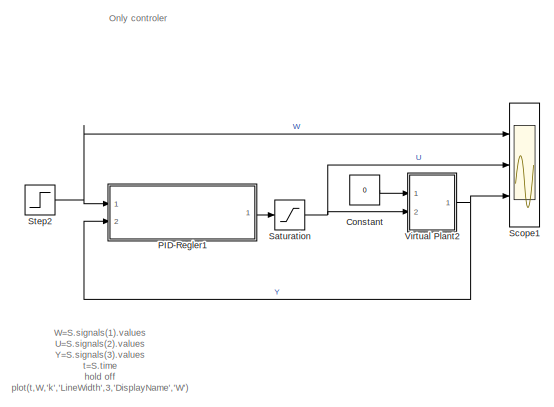
[diagram: root canvas - part 1/2, left side, full height]
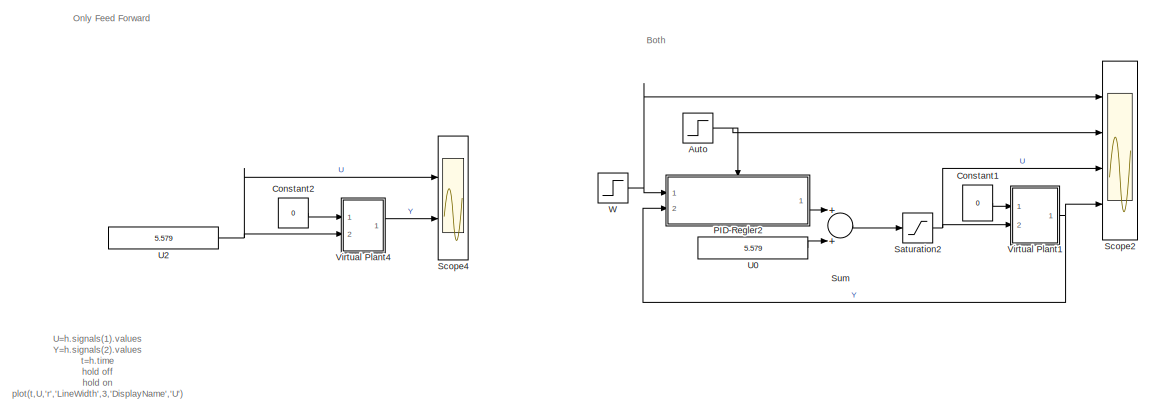
[diagram: root canvas - part 2/2, right side, full height]
MODEL slx_b2a3383e577d
KIND model
CONFIG AbsTol = auto
CONFIG FixedStep = 0.1
CONFIG MaxStep = auto
CONFIG MinStep = auto
CONFIG RelTol = 1e-3
CONFIG SampleTimeConstraint = Unconstrained
CONFIG Solver = ode1
CONFIG SolverMode = Auto
CONFIG SolverName = ode1
CONFIG StartTime = 0.0
CONFIG StopTime = 180
BLOCK [Step] Auto
  SampleTime = 0
  Time = 30
BLOCK [Constant] Constant
  Value = 0
BLOCK [Constant] Constant1
  Value = 0
BLOCK [Constant] Constant2
  Value = 0
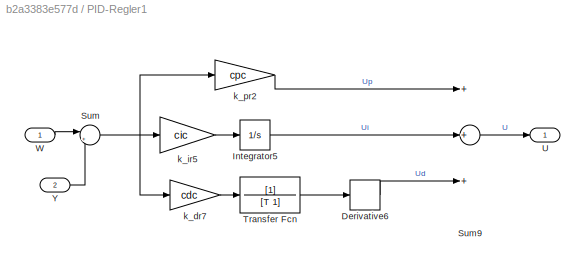
BLOCK [SubSystem] PID-Regler1
  Ports = [2, 1]
  RequestExecContextInheritance = off
  Variant = off
BLOCK [Derivative] PID-Regler1/Derivative6
BLOCK [Integrator] PID-Regler1/Integrator5
  Ports = [1, 1]
BLOCK [Sum] PID-Regler1/Sum
  IconShape = round
  InputSameDT = off
  Inputs = |+-
  OutDataTypeStr = Inherit: Inherit via internal rule
  Ports = [2, 1]
  SaturateOnIntegerOverflow = off
BLOCK [Sum] PID-Regler1/Sum9
  InputSameDT = off
  Inputs = +++
  OutDataTypeStr = Inherit: Inherit via internal rule
  Ports = [3, 1]
  SaturateOnIntegerOverflow = off
BLOCK [TransferFcn] PID-Regler1/Transfer Fcn
  Denominator = [T 1]
BLOCK [Outport] PID-Regler1/U
  IconDisplay = Port number
BLOCK [Inport] PID-Regler1/W
  IconDisplay = Port number
BLOCK [Inport] PID-Regler1/Y
  IconDisplay = Port number
  Port = 2
BLOCK [Gain] PID-Regler1/k_dr7
  Gain = cdc
  OutDataTypeStr = Inherit: Inherit via internal rule
  ParamDataTypeStr = Inherit: Inherit via internal rule
  SaturateOnIntegerOverflow = off
BLOCK [Gain] PID-Regler1/k_ir5
  Gain = cic
  OutDataTypeStr = Inherit: Inherit via internal rule
  ParamDataTypeStr = Inherit: Inherit via internal rule
  SaturateOnIntegerOverflow = off
BLOCK [Gain] PID-Regler1/k_pr2
  Gain = cpc
  OutDataTypeStr = Inherit: Inherit via internal rule
  ParamDataTypeStr = Inherit: Inherit via internal rule
  SaturateOnIntegerOverflow = off
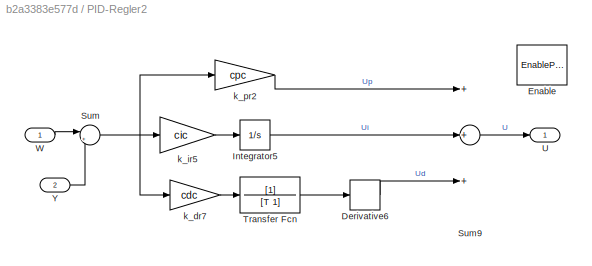
BLOCK [SubSystem] PID-Regler2
  Ports = [2, 1, 1]
  RequestExecContextInheritance = off
  Variant = off
BLOCK [Derivative] PID-Regler2/Derivative6
BLOCK [EnablePort] PID-Regler2/Enable
  Ports = []
BLOCK [Integrator] PID-Regler2/Integrator5
  Ports = [1, 1]
BLOCK [Sum] PID-Regler2/Sum
  IconShape = round
  InputSameDT = off
  Inputs = |+-
  OutDataTypeStr = Inherit: Inherit via internal rule
  Ports = [2, 1]
  SaturateOnIntegerOverflow = off
BLOCK [Sum] PID-Regler2/Sum9
  InputSameDT = off
  Inputs = +++
  OutDataTypeStr = Inherit: Inherit via internal rule
  Ports = [3, 1]
  SaturateOnIntegerOverflow = off
BLOCK [TransferFcn] PID-Regler2/Transfer Fcn
  Denominator = [T 1]
BLOCK [Outport] PID-Regler2/U
  IconDisplay = Port number
BLOCK [Inport] PID-Regler2/W
  IconDisplay = Port number
BLOCK [Inport] PID-Regler2/Y
  IconDisplay = Port number
  Port = 2
BLOCK [Gain] PID-Regler2/k_dr7
  Gain = cdc
  OutDataTypeStr = Inherit: Inherit via internal rule
  ParamDataTypeStr = Inherit: Inherit via internal rule
  SaturateOnIntegerOverflow = off
BLOCK [Gain] PID-Regler2/k_ir5
  Gain = cic
  OutDataTypeStr = Inherit: Inherit via internal rule
  ParamDataTypeStr = Inherit: Inherit via internal rule
  SaturateOnIntegerOverflow = off
BLOCK [Gain] PID-Regler2/k_pr2
  Gain = cpc
  OutDataTypeStr = Inherit: Inherit via internal rule
  ParamDataTypeStr = Inherit: Inherit via internal rule
  SaturateOnIntegerOverflow = off
BLOCK [Saturate] Saturation
  AttributesFormatString = Lower Limit=%<LowerLimit>\nUpper Limit=%<UpperLimit>
  InputPortMap = u0
  LowerLimit = 4.5
  Ports = [1, 1]
  UpperLimit = 7.5
BLOCK [Saturate] Saturation2
  AttributesFormatString = Lower Limit=%<LowerLimit>\nUpper Limit=%<UpperLimit>
  InputPortMap = u0
  LowerLimit = 4.5
  Ports = [1, 1]
  UpperLimit = 7.5
BLOCK [Scope] Scope1
  NumInputPorts = 3
  Ports = [3]
  ScopeSpecificationString = Simulink.scopes.TimeScopeBlockCfg('CurrentConfiguration', extmgr.ConfigurationSet(extmgr.Configuration('Core','General UI',true),extmgr.Configuration('Core','Source UI',true),extmgr.Configuration('Sources','WiredSimulink',true,'DataLoggingVariableName','S','DataLogging',true,'DataLoggingSaveFormat','StructureWithTime'),extmgr.Configuration('Visuals','Time Domain',true,'SerializedDisplays',{struct(...<+1798ch>
BLOCK [Scope] Scope2
  NumInputPorts = 4
  Ports = [4]
  ScopeSpecificationString = Simulink.scopes.TimeScopeBlockCfg('CurrentConfiguration', extmgr.ConfigurationSet(extmgr.Configuration('Core','General UI',true),extmgr.Configuration('Core','Source UI',true),extmgr.Configuration('Sources','WiredSimulink',true,'DataLoggingVariableName','ScopeData1','DataLogging',true,'DataLoggingSaveFormat','StructureWithTime'),extmgr.Configuration('Visuals','Time Domain',true,'SerializedDisplays'...<+1828ch>
BLOCK [Scope] Scope4
  NumInputPorts = 2
  Ports = [2]
  ScopeSpecificationString = Simulink.scopes.TimeScopeBlockCfg('CurrentConfiguration', extmgr.ConfigurationSet(extmgr.Configuration('Core','General UI',true),extmgr.Configuration('Core','Source UI',true),extmgr.Configuration('Sources','WiredSimulink',true,'DataLoggingVariableName','h','DataLogging',true,'DataLoggingSaveFormat','StructureWithTime'),extmgr.Configuration('Visuals','Time Domain',true,'SerializedDisplays',{struct(...<+1815ch>
BLOCK [Step] Step2
  After = 6
  AttributesFormatString = Start Value=%<Before>\nStep Time=%<Time>\nFinal Vlaue=%<After>
  Before = 4
  SampleTime = 0
  Time = 100
BLOCK [Sum] Sum
  InputSameDT = off
  OutDataTypeStr = Inherit: Inherit via internal rule
  Ports = [2, 1]
  SaturateOnIntegerOverflow = off
BLOCK [Constant] U0
  OutDataTypeStr = double
  Value = 5.579
BLOCK [Constant] U2
  OutDataTypeStr = double
  Value = 5.579
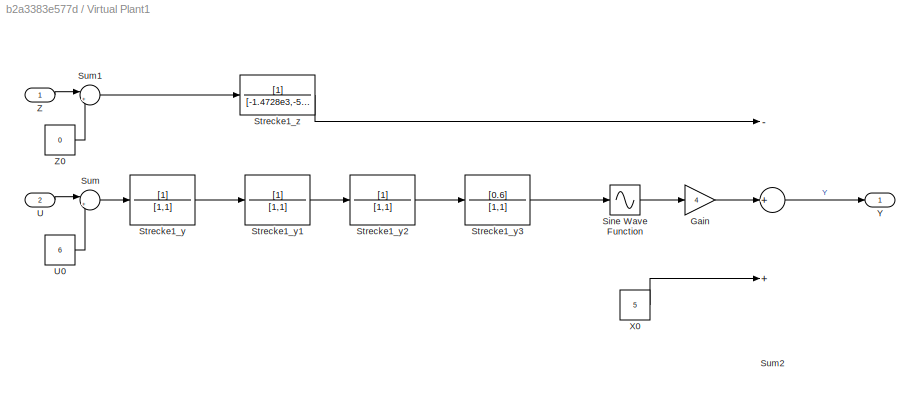
BLOCK [SubSystem] Virtual Plant1
  Ports = [2, 1]
  RequestExecContextInheritance = off
  Variant = off
BLOCK [Gain] Virtual Plant1/Gain
  Gain = 4
  OutDataTypeStr = Inherit: Inherit via internal rule
  ParamDataTypeStr = Inherit: Inherit via internal rule
  SaturateOnIntegerOverflow = off
BLOCK [Sin] Virtual Plant1/Sine Wave Function
  Ports = [1, 1]
  SampleTime = 0
  TimeSource = Use external signal
BLOCK [TransferFcn] Virtual Plant1/Strecke1_y
  Denominator = [1,1]
BLOCK [TransferFcn] Virtual Plant1/Strecke1_y1
  Denominator = [1,1]
BLOCK [TransferFcn] Virtual Plant1/Strecke1_y2
  Denominator = [1,1]
BLOCK [TransferFcn] Virtual Plant1/Strecke1_y3
  Denominator = [1,1]
  Numerator = [0.6]
BLOCK [TransferFcn] Virtual Plant1/Strecke1_z
  Denominator = [-1.4728e3,-534.157,-137.5577,-4.4778]
BLOCK [Sum] Virtual Plant1/Sum
  IconShape = round
  InputSameDT = off
  Inputs = |+-
  OutDataTypeStr = Inherit: Inherit via internal rule
  Ports = [2, 1]
  SaturateOnIntegerOverflow = off
BLOCK [Sum] Virtual Plant1/Sum1
  IconShape = round
  InputSameDT = off
  Inputs = |+-
  OutDataTypeStr = Inherit: Inherit via internal rule
  Ports = [2, 1]
  SaturateOnIntegerOverflow = off
BLOCK [Sum] Virtual Plant1/Sum2
  InputSameDT = off
  Inputs = -++
  OutDataTypeStr = Inherit: Inherit via internal rule
  Ports = [3, 1]
  SaturateOnIntegerOverflow = off
BLOCK [Inport] Virtual Plant1/U
  IconDisplay = Port number
  Port = 2
BLOCK [Constant] Virtual Plant1/U0
  Value = 6
BLOCK [Constant] Virtual Plant1/X0
  Value = 5
BLOCK [Outport] Virtual Plant1/Y
  IconDisplay = Port number
BLOCK [Inport] Virtual Plant1/Z
  IconDisplay = Port number
BLOCK [Constant] Virtual Plant1/Z0
  Value = 0
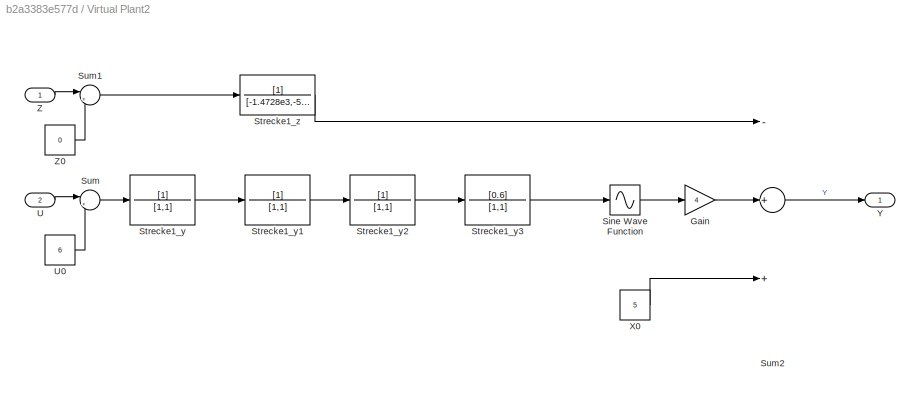
BLOCK [SubSystem] Virtual Plant2
  Ports = [2, 1]
  RequestExecContextInheritance = off
  Variant = off
BLOCK [Gain] Virtual Plant2/Gain
  Gain = 4
  OutDataTypeStr = Inherit: Inherit via internal rule
  ParamDataTypeStr = Inherit: Inherit via internal rule
  SaturateOnIntegerOverflow = off
BLOCK [Sin] Virtual Plant2/Sine Wave Function
  Ports = [1, 1]
  SampleTime = 0
  TimeSource = Use external signal
BLOCK [TransferFcn] Virtual Plant2/Strecke1_y
  Denominator = [1,1]
BLOCK [TransferFcn] Virtual Plant2/Strecke1_y1
  Denominator = [1,1]
BLOCK [TransferFcn] Virtual Plant2/Strecke1_y2
  Denominator = [1,1]
BLOCK [TransferFcn] Virtual Plant2/Strecke1_y3
  Denominator = [1,1]
  Numerator = [0.6]
BLOCK [TransferFcn] Virtual Plant2/Strecke1_z
  Denominator = [-1.4728e3,-534.157,-137.5577,-4.4778]
BLOCK [Sum] Virtual Plant2/Sum
  IconShape = round
  InputSameDT = off
  Inputs = |+-
  OutDataTypeStr = Inherit: Inherit via internal rule
  Ports = [2, 1]
  SaturateOnIntegerOverflow = off
BLOCK [Sum] Virtual Plant2/Sum1
  IconShape = round
  InputSameDT = off
  Inputs = |+-
  OutDataTypeStr = Inherit: Inherit via internal rule
  Ports = [2, 1]
  SaturateOnIntegerOverflow = off
BLOCK [Sum] Virtual Plant2/Sum2
  InputSameDT = off
  Inputs = -++
  OutDataTypeStr = Inherit: Inherit via internal rule
  Ports = [3, 1]
  SaturateOnIntegerOverflow = off
BLOCK [Inport] Virtual Plant2/U
  IconDisplay = Port number
  Port = 2
BLOCK [Constant] Virtual Plant2/U0
  Value = 6
BLOCK [Constant] Virtual Plant2/X0
  Value = 5
BLOCK [Outport] Virtual Plant2/Y
  IconDisplay = Port number
BLOCK [Inport] Virtual Plant2/Z
  IconDisplay = Port number
BLOCK [Constant] Virtual Plant2/Z0
  Value = 0
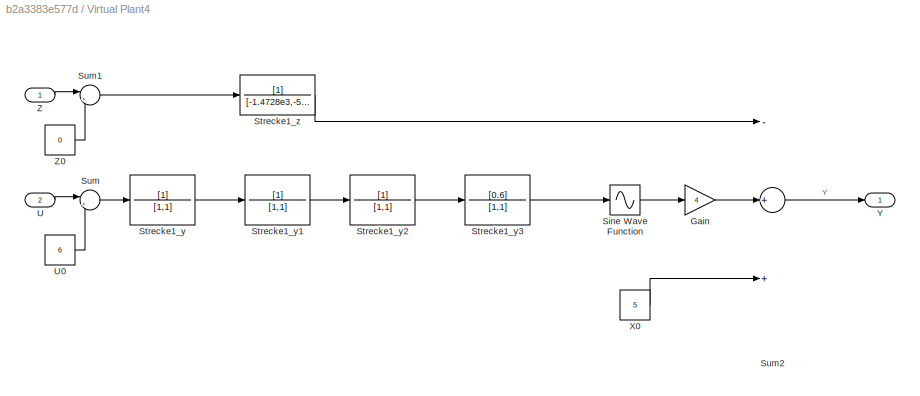
BLOCK [SubSystem] Virtual Plant4
  Ports = [2, 1]
  RequestExecContextInheritance = off
  Variant = off
BLOCK [Gain] Virtual Plant4/Gain
  Gain = 4
  OutDataTypeStr = Inherit: Inherit via internal rule
  ParamDataTypeStr = Inherit: Inherit via internal rule
  SaturateOnIntegerOverflow = off
BLOCK [Sin] Virtual Plant4/Sine Wave Function
  Ports = [1, 1]
  SampleTime = 0
  TimeSource = Use external signal
BLOCK [TransferFcn] Virtual Plant4/Strecke1_y
  Denominator = [1,1]
BLOCK [TransferFcn] Virtual Plant4/Strecke1_y1
  Denominator = [1,1]
BLOCK [TransferFcn] Virtual Plant4/Strecke1_y2
  Denominator = [1,1]
BLOCK [TransferFcn] Virtual Plant4/Strecke1_y3
  Denominator = [1,1]
  Numerator = [0.6]
BLOCK [TransferFcn] Virtual Plant4/Strecke1_z
  Denominator = [-1.4728e3,-534.157,-137.5577,-4.4778]
BLOCK [Sum] Virtual Plant4/Sum
  IconShape = round
  InputSameDT = off
  Inputs = |+-
  OutDataTypeStr = Inherit: Inherit via internal rule
  Ports = [2, 1]
  SaturateOnIntegerOverflow = off
BLOCK [Sum] Virtual Plant4/Sum1
  IconShape = round
  InputSameDT = off
  Inputs = |+-
  OutDataTypeStr = Inherit: Inherit via internal rule
  Ports = [2, 1]
  SaturateOnIntegerOverflow = off
BLOCK [Sum] Virtual Plant4/Sum2
  InputSameDT = off
  Inputs = -++
  OutDataTypeStr = Inherit: Inherit via internal rule
  Ports = [3, 1]
  SaturateOnIntegerOverflow = off
BLOCK [Inport] Virtual Plant4/U
  IconDisplay = Port number
  Port = 2
BLOCK [Constant] Virtual Plant4/U0
  Value = 6
BLOCK [Constant] Virtual Plant4/X0
  Value = 5
BLOCK [Outport] Virtual Plant4/Y
  IconDisplay = Port number
BLOCK [Inport] Virtual Plant4/Z
  IconDisplay = Port number
BLOCK [Constant] Virtual Plant4/Z0
  Value = 0
BLOCK [Step] W
  After = 6
  Before = 4
  SampleTime = 0
  Time = 100
ANNOTATION (root): Both
ANNOTATION (root): Only Feed Forward
ANNOTATION (root): Only controler
ANNOTATION (root): U=h.signals(1).values Y=h.signals(2).values t=h.time hold off hold on plot(t,U,'r','LineWidth',3,'DisplayName','U') hold on plot(t,Y,'b','LineWidth',3,'DisplayName','Y') xlabel({'Time'}); set(gca,'FontSize',16,'XGrid','on','YGrid','on'); legend(gca,'show') %xlim(gca,[90 180]); ylim(gca,[1 8]);
ANNOTATION (root): W=S.signals(1).values U=S.signals(2).values Y=S.signals(3).values t=S.time hold off plot(t,W,'k','LineWidth',3,'DisplayName','W') hold on plot(t,U,'r','LineWidth',3,'DisplayName','U') plot(t,Y,'b','LineWidth',3,'DisplayName','Y') xlabel({'Time'}); set(gca,'FontSize',16,'XGrid','on','YGrid','on'); legend(gca,'show') %xlim(gca,[90 180]); %ylim(gca,[4 7.5]);
NET Auto:1 -> PID-Regler2:enable, Scope2:2
LINE Constant1:1 -> Virtual Plant1:1
LINE Constant2:1 -> Virtual Plant4:1
LINE Constant:1 -> Virtual Plant2:1
LINE PID-Regler1/Derivative6:1 -> PID-Regler1/Sum9:3
LINE PID-Regler1/Integrator5:1 -> PID-Regler1/Sum9:2
LINE PID-Regler1/Sum9:1 -> PID-Regler1/U:1
NET PID-Regler1/Sum:1 -> PID-Regler1/k_dr7:1, PID-Regler1/k_ir5:1, PID-Regler1/k_pr2:1
LINE PID-Regler1/Transfer Fcn:1 -> PID-Regler1/Derivative6:1
LINE PID-Regler1/W:1 -> PID-Regler1/Sum:1
LINE PID-Regler1/Y:1 -> PID-Regler1/Sum:2
LINE PID-Regler1/k_dr7:1 -> PID-Regler1/Transfer Fcn:1
LINE PID-Regler1/k_ir5:1 -> PID-Regler1/Integrator5:1
LINE PID-Regler1/k_pr2:1 -> PID-Regler1/Sum9:1
LINE PID-Regler1:1 -> Saturation:1
LINE PID-Regler2/Derivative6:1 -> PID-Regler2/Sum9:3
LINE PID-Regler2/Integrator5:1 -> PID-Regler2/Sum9:2
LINE PID-Regler2/Sum9:1 -> PID-Regler2/U:1
NET PID-Regler2/Sum:1 -> PID-Regler2/k_dr7:1, PID-Regler2/k_ir5:1, PID-Regler2/k_pr2:1
LINE PID-Regler2/Transfer Fcn:1 -> PID-Regler2/Derivative6:1
LINE PID-Regler2/W:1 -> PID-Regler2/Sum:1
LINE PID-Regler2/Y:1 -> PID-Regler2/Sum:2
LINE PID-Regler2/k_dr7:1 -> PID-Regler2/Transfer Fcn:1
LINE PID-Regler2/k_ir5:1 -> PID-Regler2/Integrator5:1
LINE PID-Regler2/k_pr2:1 -> PID-Regler2/Sum9:1
LINE PID-Regler2:1 -> Sum:1
NET Saturation2:1 -> Scope2:3, Virtual Plant1:2
NET Saturation:1 -> Scope1:2, Virtual Plant2:2
NET Step2:1 -> PID-Regler1:1, Scope1:1
LINE Sum:1 -> Saturation2:1
LINE U0:1 -> Sum:2
NET U2:1 -> Scope4:1, Virtual Plant4:2
LINE Virtual Plant1/Gain:1 -> Virtual Plant1/Sum2:2
LINE Virtual Plant1/Sine Wave Function:1 -> Virtual Plant1/Gain:1
LINE Virtual Plant1/Strecke1_y1:1 -> Virtual Plant1/Strecke1_y2:1
LINE Virtual Plant1/Strecke1_y2:1 -> Virtual Plant1/Strecke1_y3:1
LINE Virtual Plant1/Strecke1_y3:1 -> Virtual Plant1/Sine Wave Function:1
LINE Virtual Plant1/Strecke1_y:1 -> Virtual Plant1/Strecke1_y1:1
LINE Virtual Plant1/Strecke1_z:1 -> Virtual Plant1/Sum2:1
LINE Virtual Plant1/Sum1:1 -> Virtual Plant1/Strecke1_z:1
LINE Virtual Plant1/Sum2:1 -> Virtual Plant1/Y:1
LINE Virtual Plant1/Sum:1 -> Virtual Plant1/Strecke1_y:1
LINE Virtual Plant1/U0:1 -> Virtual Plant1/Sum:2
LINE Virtual Plant1/U:1 -> Virtual Plant1/Sum:1
LINE Virtual Plant1/X0:1 -> Virtual Plant1/Sum2:3
LINE Virtual Plant1/Z0:1 -> Virtual Plant1/Sum1:2
LINE Virtual Plant1/Z:1 -> Virtual Plant1/Sum1:1
NET Virtual Plant1:1 -> PID-Regler2:2, Scope2:4
LINE Virtual Plant2/Gain:1 -> Virtual Plant2/Sum2:2
LINE Virtual Plant2/Sine Wave Function:1 -> Virtual Plant2/Gain:1
LINE Virtual Plant2/Strecke1_y1:1 -> Virtual Plant2/Strecke1_y2:1
LINE Virtual Plant2/Strecke1_y2:1 -> Virtual Plant2/Strecke1_y3:1
LINE Virtual Plant2/Strecke1_y3:1 -> Virtual Plant2/Sine Wave Function:1
LINE Virtual Plant2/Strecke1_y:1 -> Virtual Plant2/Strecke1_y1:1
LINE Virtual Plant2/Strecke1_z:1 -> Virtual Plant2/Sum2:1
LINE Virtual Plant2/Sum1:1 -> Virtual Plant2/Strecke1_z:1
LINE Virtual Plant2/Sum2:1 -> Virtual Plant2/Y:1
LINE Virtual Plant2/Sum:1 -> Virtual Plant2/Strecke1_y:1
LINE Virtual Plant2/U0:1 -> Virtual Plant2/Sum:2
LINE Virtual Plant2/U:1 -> Virtual Plant2/Sum:1
LINE Virtual Plant2/X0:1 -> Virtual Plant2/Sum2:3
LINE Virtual Plant2/Z0:1 -> Virtual Plant2/Sum1:2
LINE Virtual Plant2/Z:1 -> Virtual Plant2/Sum1:1
NET Virtual Plant2:1 -> PID-Regler1:2, Scope1:3
LINE Virtual Plant4/Gain:1 -> Virtual Plant4/Sum2:2
LINE Virtual Plant4/Sine Wave Function:1 -> Virtual Plant4/Gain:1
LINE Virtual Plant4/Strecke1_y1:1 -> Virtual Plant4/Strecke1_y2:1
LINE Virtual Plant4/Strecke1_y2:1 -> Virtual Plant4/Strecke1_y3:1
LINE Virtual Plant4/Strecke1_y3:1 -> Virtual Plant4/Sine Wave Function:1
LINE Virtual Plant4/Strecke1_y:1 -> Virtual Plant4/Strecke1_y1:1
LINE Virtual Plant4/Strecke1_z:1 -> Virtual Plant4/Sum2:1
LINE Virtual Plant4/Sum1:1 -> Virtual Plant4/Strecke1_z:1
LINE Virtual Plant4/Sum2:1 -> Virtual Plant4/Y:1
LINE Virtual Plant4/Sum:1 -> Virtual Plant4/Strecke1_y:1
LINE Virtual Plant4/U0:1 -> Virtual Plant4/Sum:2
LINE Virtual Plant4/U:1 -> Virtual Plant4/Sum:1
LINE Virtual Plant4/X0:1 -> Virtual Plant4/Sum2:3
LINE Virtual Plant4/Z0:1 -> Virtual Plant4/Sum1:2
LINE Virtual Plant4/Z:1 -> Virtual Plant4/Sum1:1
LINE Virtual Plant4:1 -> Scope4:2
NET W:1 -> PID-Regler2:1, Scope2:1
note: NET lines group one-source signal fan-out (src -> all destinations, sorted); 1:1 wires keep LINE
